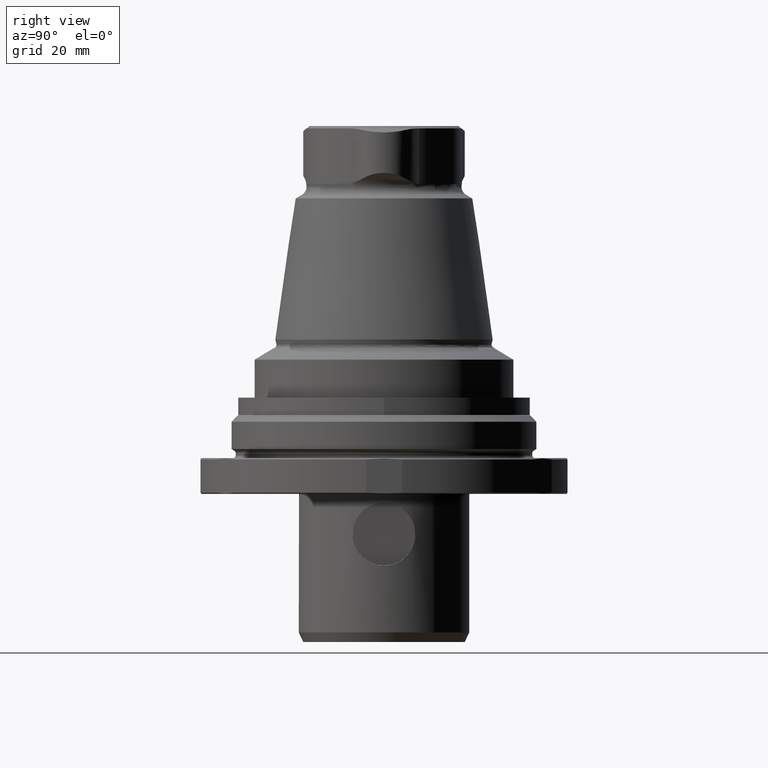
[diagram: clean part render]
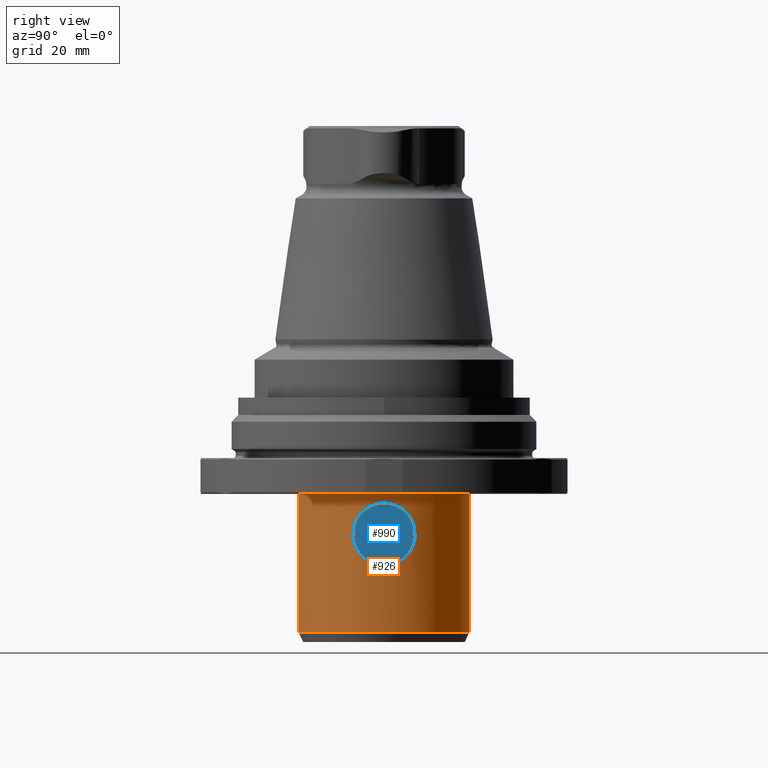
[diagram: same view with the hole feature highlighted: cylindrical wall and planar end face, labeled with their STEP entity ids]
A machine part, right view. The highlighted faces form one hole feature of diameter 38 mm: the cylindrical wall (entity #926, orange) and its adjacent planar end face (entity #990, blue) — they share a circular edge in the B-rep.
Wall:
#56=ELLIPSE('',#1008,544.42045860902,19.);
#57=ELLIPSE('',#1009,544.42045860902,19.);
#58=CIRCLE('',#1006,19.);
#59=CIRCLE('',#1007,19.);
#113=LINE('',#1419,#143);
#114=LINE('',#1431,#144);
#143=VECTOR('',#1132,1000.);
#144=VECTOR('',#1133,1000.);
#173=ORIENTED_EDGE('',*,*,#435,.F.);
#174=ORIENTED_EDGE('',*,*,#436,.F.);
#175=ORIENTED_EDGE('',*,*,#437,.F.);
#176=ORIENTED_EDGE('',*,*,#438,.F.);
#177=ORIENTED_EDGE('',*,*,#439,.F.);
#178=ORIENTED_EDGE('',*,*,#440,.T.);
#179=ORIENTED_EDGE('',*,*,#441,.T.);
#180=ORIENTED_EDGE('',*,*,#442,.T.);
#181=ORIENTED_EDGE('',*,*,#443,.T.);
#182=ORIENTED_EDGE('',*,*,#444,.T.);
#435=EDGE_CURVE('',#566,#567,#662,.T.);
#436=EDGE_CURVE('',#568,#566,#113,.F.);
#437=EDGE_CURVE('',#569,#568,#663,.T.);
#438=EDGE_CURVE('',#567,#569,#114,.T.);
#439=EDGE_CURVE('',#570,#570,#58,.T.);
#440=EDGE_CURVE('',#571,#571,#59,.T.);
#441=EDGE_CURVE('',#572,#573,#56,.F.);
#442=EDGE_CURVE('',#573,#574,#664,.T.);
#443=EDGE_CURVE('',#574,#575,#57,.F.);
#444=EDGE_CURVE('',#575,#572,#665,.T.);
#566=VERTEX_POINT('',#1417);
#567=VERTEX_POINT('',#1418);
#568=VERTEX_POINT('',#1420);
#569=VERTEX_POINT('',#1430);
#570=VERTEX_POINT('',#1433);
#571=VERTEX_POINT('',#1435);
#572=VERTEX_POINT('',#1437);
#573=VERTEX_POINT('',#1438);
#574=VERTEX_POINT('',#1448);
#575=VERTEX_POINT('',#1450);
#662=B_SPLINE_CURVE_WITH_KNOTS('',3,(#1408,#1409,#1410,#1411,#1412,#1413,
#1414,#1415,#1416),.UNSPECIFIED.,.F.,.F.,(4,1,1,1,1,1,4),(0.,0.00494906524637005,
0.00742359786955508,0.0098981304927401,0.0123726631159251,0.0148471957391102,
0.0197962609854802),.UNSPECIFIED.);
#663=B_SPLINE_CURVE_WITH_KNOTS('',3,(#1421,#1422,#1423,#1424,#1425,#1426,
#1427,#1428,#1429),.UNSPECIFIED.,.F.,.F.,(4,1,1,1,1,1,4),(0.,0.00494906524637005,
0.00742359786955508,0.00989813049274011,0.0123726631159251,0.0148471957391102,
0.0197962609854802),.UNSPECIFIED.);
#664=B_SPLINE_CURVE_WITH_KNOTS('',3,(#1439,#1440,#1441,#1442,#1443,#1444,
#1445,#1446,#1447),.UNSPECIFIED.,.F.,.F.,(4,1,1,1,1,1,4),(2.51259741218918E-14,
0.00519245764147122,0.00778868646219427,0.0103849152829173,0.0129811441036404,
0.0155773729243634,0.0207698305658095),.UNSPECIFIED.);
#665=B_SPLINE_CURVE_WITH_KNOTS('',3,(#1451,#1452,#1453,#1454,#1455,#1456,
#1457,#1458),.UNSPECIFIED.,.F.,.F.,(4,1,1,1,1,4),(2.10394297668666E-14,
0.00453400773030349,0.00906801546058595,0.0113350193257272,0.0136020231908684,
0.0181360309211509),.UNSPECIFIED.);
#706=EDGE_LOOP('',(#173,#174,#175,#176));
#707=EDGE_LOOP('',(#177));
#708=EDGE_LOOP('',(#178));
#709=EDGE_LOOP('',(#179,#180,#181,#182));
#801=FACE_BOUND('',#706,.T.);
#802=FACE_BOUND('',#707,.T.);
#803=FACE_BOUND('',#708,.T.);
#804=FACE_BOUND('',#709,.T.);
#896=CYLINDRICAL_SURFACE('',#1005,19.);
#926=ADVANCED_FACE('',(#801,#802,#803,#804),#896,.T.);
#1005=AXIS2_PLACEMENT_3D('',#1407,#1130,#1131);
#1006=AXIS2_PLACEMENT_3D('',#1432,#1134,#1135);
#1007=AXIS2_PLACEMENT_3D('',#1434,#1136,#1137);
#1008=AXIS2_PLACEMENT_3D('',#1436,#1138,#1139);
#1009=AXIS2_PLACEMENT_3D('',#1449,#1140,#1141);
#1130=DIRECTION('',(0.,0.,-1.));
#1131=DIRECTION('',(0.,1.,0.));
#1132=DIRECTION('',(0.,0.,-1.));
#1133=DIRECTION('',(0.,0.,-1.));
#1134=DIRECTION('',(0.,0.,-1.));
#1135=DIRECTION('',(0.,1.,0.));
#1136=DIRECTION('',(1.22461692971323E-16,-7.49836836562635E-33,-1.));
#1137=DIRECTION('',(-1.,0.,-1.22461692971323E-16));
#1138=DIRECTION('',(0.999390827019096,0.,-0.0348994967025018));
#1139=DIRECTION('',(-0.0348994967025018,0.,-0.999390827019096));
#1140=DIRECTION('',(0.999390827019096,0.,-0.0348994967025018));
#1141=DIRECTION('',(-0.0348994967025018,0.,-0.999390827019096));
#1407=CARTESIAN_POINT('',(0.,0.,-40.));
#1408=CARTESIAN_POINT('',(-17.7,-6.90724257573163,-16.864218330839));
#1409=CARTESIAN_POINT('',(-17.805843199703,-6.63601645123937,-15.2147599132474));
#1410=CARTESIAN_POINT('',(-18.3166767005495,-5.34979156711983,-12.9842774767058));
#1411=CARTESIAN_POINT('',(-18.8866536082403,-2.4881167763174,-11.3006897276904));
#1412=CARTESIAN_POINT('',(-19.0564044087324,-0.00566647900771276,-10.8503772680992));
#1413=CARTESIAN_POINT('',(-18.8877250149614,2.48157402810264,-11.2978113564132));
#1414=CARTESIAN_POINT('',(-18.3176963405219,5.346958294701,-12.9802350133401));
#1415=CARTESIAN_POINT('',(-17.805836865908,6.63603268176422,-15.2148586189892));
#1416=CARTESIAN_POINT('',(-17.7,6.90724257573163,-16.864218330839));
#1417=CARTESIAN_POINT('',(-17.7,-6.90724257573163,-16.864218330839));
#1418=CARTESIAN_POINT('',(-17.7,6.90724257573163,-16.864218330839));
#1419=CARTESIAN_POINT('',(-17.7,-6.90724257573163,-40.));
#1420=CARTESIAN_POINT('',(-17.7,-6.90724257573163,-19.1357816691607));
#1421=CARTESIAN_POINT('',(-17.7,6.90724257573163,-19.1357816691607));
#1422=CARTESIAN_POINT('',(-17.805843199703,6.63601645123937,-20.7852400867524));
#1423=CARTESIAN_POINT('',(-18.3166767005495,5.34979156711983,-23.015722523294));
#1424=CARTESIAN_POINT('',(-18.8866536082403,2.4881167763174,-24.6993102723094));
#1425=CARTESIAN_POINT('',(-19.0564044087324,0.00566647900770771,-25.1496227319005));
#1426=CARTESIAN_POINT('',(-18.8877250149614,-2.48157402810264,-24.7021886435865));
#1427=CARTESIAN_POINT('',(-18.3176963405219,-5.34695829470099,-23.0197649866597));
#1428=CARTESIAN_POINT('',(-17.805836865908,-6.63603268176422,-20.7851413810105));
#1429=CARTESIAN_POINT('',(-17.7,-6.90724257573163,-19.1357816691607));
#1430=CARTESIAN_POINT('',(-17.7,6.90724257573163,-19.1357816691607));
#1431=CARTESIAN_POINT('',(-17.7,6.90724257573163,-40.));
#1432=CARTESIAN_POINT('',(0.,0.,-39.8554930794905));
#1433=CARTESIAN_POINT('',(0.,19.,-39.8554930794905));
#1434=CARTESIAN_POINT('',(0.,0.,-8.99999999999999));
#1435=CARTESIAN_POINT('',(-19.,0.,-9.));
#1436=CARTESIAN_POINT('',(0.,0.,-524.838991523188));
#1437=CARTESIAN_POINT('',(17.767909969555,6.73062963725021,-16.0326213269817));
#1438=CARTESIAN_POINT('',(17.6768447006593,6.96628749254239,-18.6403894323566));
#1439=CARTESIAN_POINT('',(17.6768447006601,6.96628749254491,-18.6403894323311));
#1440=CARTESIAN_POINT('',(17.7445540058023,6.79447619806874,-20.3881006685138));
#1441=CARTESIAN_POINT('',(18.2584270770515,5.55507674982812,-22.810193965947));
#1442=CARTESIAN_POINT('',(18.8749455129826,2.60807652548869,-24.6682852364027));
#1443=CARTESIAN_POINT('',(19.0622849834153,0.00500206531541725,-25.1715766561834));
#1444=CARTESIAN_POINT('',(18.8759117788559,-2.60293352323063,-24.6710013671492));
#1445=CARTESIAN_POINT('',(18.2587332863877,-5.55469716306717,-22.8117044388306));
#1446=CARTESIAN_POINT('',(17.7445633835373,-6.79445240221085,-20.3883427264429));
#1447=CARTESIAN_POINT('',(17.6768447006591,-6.96628749254445,-18.6403894323357));
#1448=CARTESIAN_POINT('',(17.6768447006593,-6.96628749254239,-18.6403894323566));
#1449=CARTESIAN_POINT('',(0.,0.,-524.838991523188));
#1450=CARTESIAN_POINT('',(17.7679099695558,-6.73062963724315,-16.032621326957));
#1451=CARTESIAN_POINT('',(17.7679099695551,-6.73062963724905,-16.0326213269777));
#1452=CARTESIAN_POINT('',(17.9271919354731,-6.31014778298959,-14.5657101647689));
#1453=CARTESIAN_POINT('',(18.5867183021969,-4.53417580806609,-12.0158442663261));
#1454=CARTESIAN_POINT('',(19.0981781063838,-0.771900708939548,-10.7460829104267));
#1455=CARTESIAN_POINT('',(18.9059302723224,2.27127173896534,-11.2410961582811));
#1456=CARTESIAN_POINT('',(18.4177066224419,4.96714330203136,-12.6502759644503));
#1457=CARTESIAN_POINT('',(17.9271725361305,6.31019899450714,-14.5658888234782));
#1458=CARTESIAN_POINT('',(17.7679099695538,6.73062963725017,-16.0326213269815));
End face:
#55=PLANE('',#1125);
#56=ELLIPSE('',#1008,544.42045860902,19.);
#57=ELLIPSE('',#1009,544.42045860902,19.);
#111=CIRCLE('',#1124,7.00000000000001);
#112=CIRCLE('',#1126,7.00000000000001);
#429=ORIENTED_EDGE('',*,*,#443,.F.);
#430=ORIENTED_EDGE('',*,*,#564,.T.);
#431=ORIENTED_EDGE('',*,*,#441,.F.);
#432=ORIENTED_EDGE('',*,*,#565,.T.);
#441=EDGE_CURVE('',#572,#573,#56,.F.);
#443=EDGE_CURVE('',#574,#575,#57,.F.);
#564=EDGE_CURVE('',#574,#573,#111,.T.);
#565=EDGE_CURVE('',#572,#575,#112,.T.);
#572=VERTEX_POINT('',#1437);
#573=VERTEX_POINT('',#1438);
#574=VERTEX_POINT('',#1448);
#575=VERTEX_POINT('',#1450);
#799=EDGE_LOOP('',(#429,#430,#431,#432));
#894=FACE_BOUND('',#799,.T.);
#990=ADVANCED_FACE('',(#894),#55,.T.);
#1008=AXIS2_PLACEMENT_3D('',#1436,#1138,#1139);
#1009=AXIS2_PLACEMENT_3D('',#1449,#1140,#1141);
#1124=AXIS2_PLACEMENT_3D('',#1871,#1398,#1399);
#1125=AXIS2_PLACEMENT_3D('',#1872,#1400,#1401);
#1126=AXIS2_PLACEMENT_3D('',#1873,#1402,#1403);
#1138=DIRECTION('',(0.999390827019096,0.,-0.0348994967025018));
#1139=DIRECTION('',(-0.0348994967025018,0.,-0.999390827019096));
#1140=DIRECTION('',(0.999390827019096,0.,-0.0348994967025018));
#1141=DIRECTION('',(-0.0348994967025018,0.,-0.999390827019096));
#1398=DIRECTION('',(0.999390827019096,0.,-0.0348994967025018));
#1399=DIRECTION('',(-0.0348994967025018,0.,-0.999390827019096));
#1400=DIRECTION('',(0.999390827019096,0.,-0.0348994967025018));
#1401=DIRECTION('',(-0.0348994967025018,0.,-0.999390827019096));
#1402=DIRECTION('',(0.999390827019096,0.,-0.0348994967025018));
#1403=DIRECTION('',(-0.0348994967025018,0.,-0.999390827019096));
#1436=CARTESIAN_POINT('',(0.,0.,-524.838991523188));
#1437=CARTESIAN_POINT('',(17.767909969555,6.73062963725021,-16.0326213269817));
#1438=CARTESIAN_POINT('',(17.6768447006593,6.96628749254239,-18.6403894323566));
#1448=CARTESIAN_POINT('',(17.6768447006593,-6.96628749254239,-18.6403894323566));
#1449=CARTESIAN_POINT('',(0.,0.,-524.838991523188));
#1450=CARTESIAN_POINT('',(17.7679099695558,-6.73062963724315,-16.032621326957));
#1871=CARTESIAN_POINT('',(17.7007919248752,0.,-17.9546306542867));
#1872=CARTESIAN_POINT('',(17.7007919248752,0.,-17.9546306542867));
#1873=CARTESIAN_POINT('',(17.7007919248752,0.,-17.9546306542867));